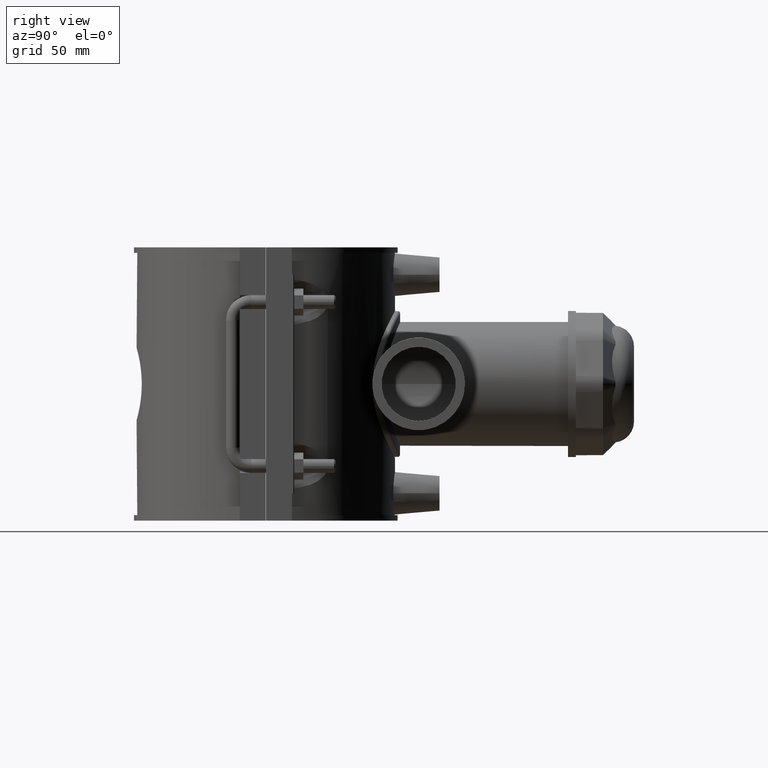
[diagram: clean part render]
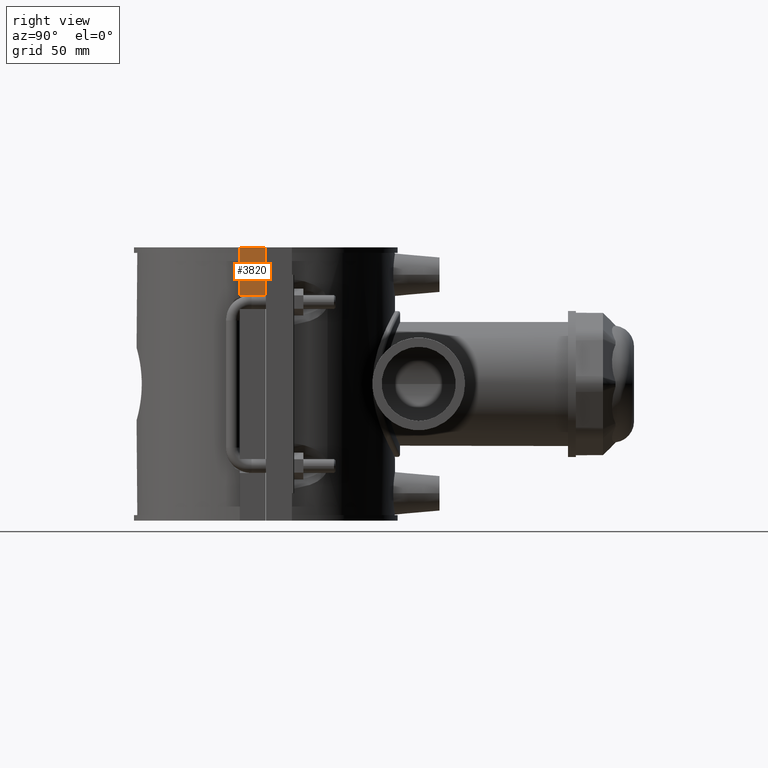
[diagram: same view with one face highlighted and labeled with its STEP entity id]
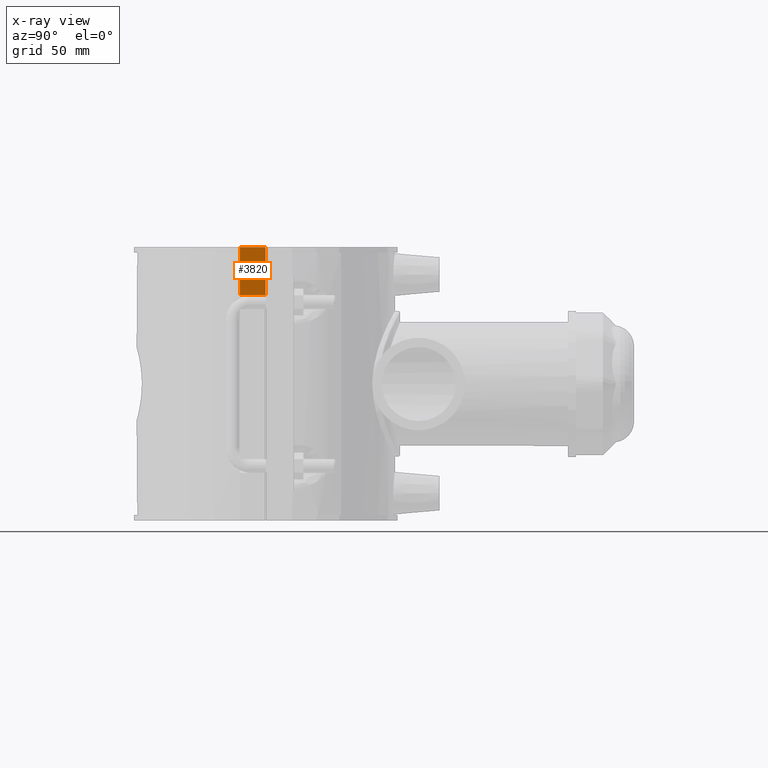
[diagram: x-ray of the same camera — body ghosted, the highlighted face saturated]
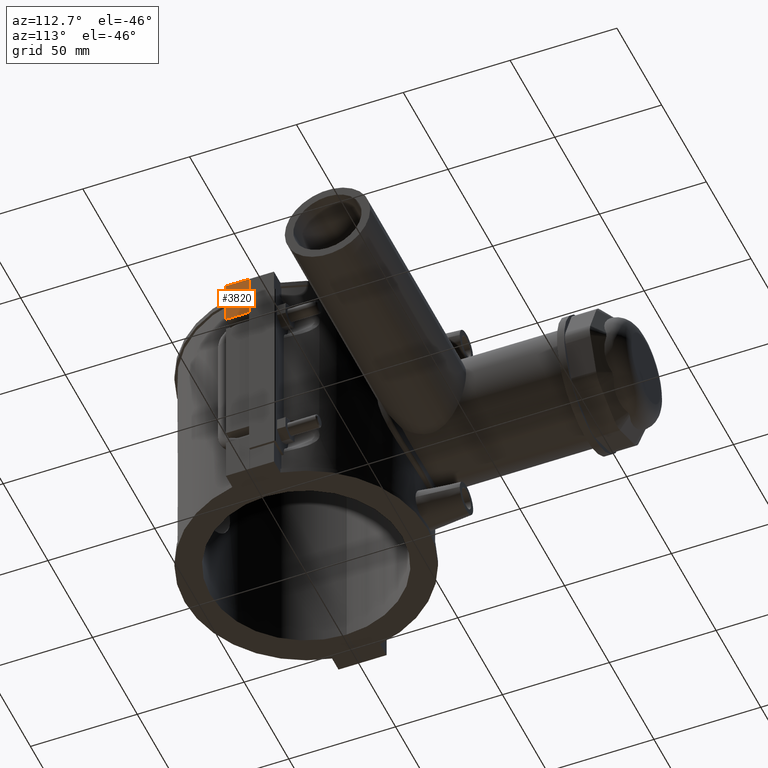
[diagram: same view with one face highlighted and labeled with its STEP entity id]
A machine part, right view. The second image highlights one B-rep face of the part: STEP entity #3820.
The next image is the same camera in x-ray: the body ghosted, the highlighted face saturated — about 0% of this face is hidden behind the body in this view.
A second angle (auxiliary view) of the same face is appended — the face is thin or edge-on in the first view.
In plain terms, the highlighted planar face has unit normal (1, 0, 0).
Its self-contained STEP definition (entity closure, byte-faithful):
#147=LINE('',#6752,#446);
#320=LINE('',#8067,#619);
#333=LINE('',#8094,#632);
#334=LINE('',#8095,#633);
#446=VECTOR('',#4514,20.6);
#619=VECTOR('',#5043,11.2);
#632=VECTOR('',#5070,20.6);
#633=VECTOR('',#5071,11.2);
#771=PLANE('',#4144);
#1166=FACE_OUTER_BOUND('',#1437,.T.);
#1437=EDGE_LOOP('',(#3463,#3464,#3465,#3466));
#1722=VERTEX_POINT('',#6749);
#1723=VERTEX_POINT('',#6751);
#1911=VERTEX_POINT('',#8065);
#1918=VERTEX_POINT('',#8093);
#2146=EDGE_CURVE('',#1722,#1723,#147,.T.);
#2432=EDGE_CURVE('',#1722,#1911,#320,.T.);
#2446=EDGE_CURVE('',#1911,#1918,#333,.T.);
#2447=EDGE_CURVE('',#1723,#1918,#334,.T.);
#3463=ORIENTED_EDGE('',*,*,#2432,.T.);
#3464=ORIENTED_EDGE('',*,*,#2446,.T.);
#3465=ORIENTED_EDGE('',*,*,#2447,.F.);
#3466=ORIENTED_EDGE('',*,*,#2146,.F.);
#3820=ADVANCED_FACE('',(#1166),#771,.T.);
#4144=AXIS2_PLACEMENT_3D('',#8092,#5068,#5069);
#4514=DIRECTION('',(0.,0.,1.));
#5043=DIRECTION('',(0.,1.,0.));
#5068=DIRECTION('center_axis',(1.,0.,0.));
#5069=DIRECTION('ref_axis',(0.,1.,0.));
#5070=DIRECTION('',(0.,0.,1.));
#5071=DIRECTION('',(0.,1.,0.));
#6749=CARTESIAN_POINT('',(63.,-11.25,38.4));
#6751=CARTESIAN_POINT('',(63.,-11.25,59.));
#6752=CARTESIAN_POINT('',(63.,-11.25,0.));
#8065=CARTESIAN_POINT('',(63.,-0.0500000000000078,38.4));
#8067=CARTESIAN_POINT('',(63.,-11.25,38.4));
#8092=CARTESIAN_POINT('Origin',(63.,-11.25,0.));
#8093=CARTESIAN_POINT('',(63.,-0.0500000000000078,59.));
#8094=CARTESIAN_POINT('',(63.,-0.0500000000000078,-29.5));
#8095=CARTESIAN_POINT('',(63.,-11.25,59.));